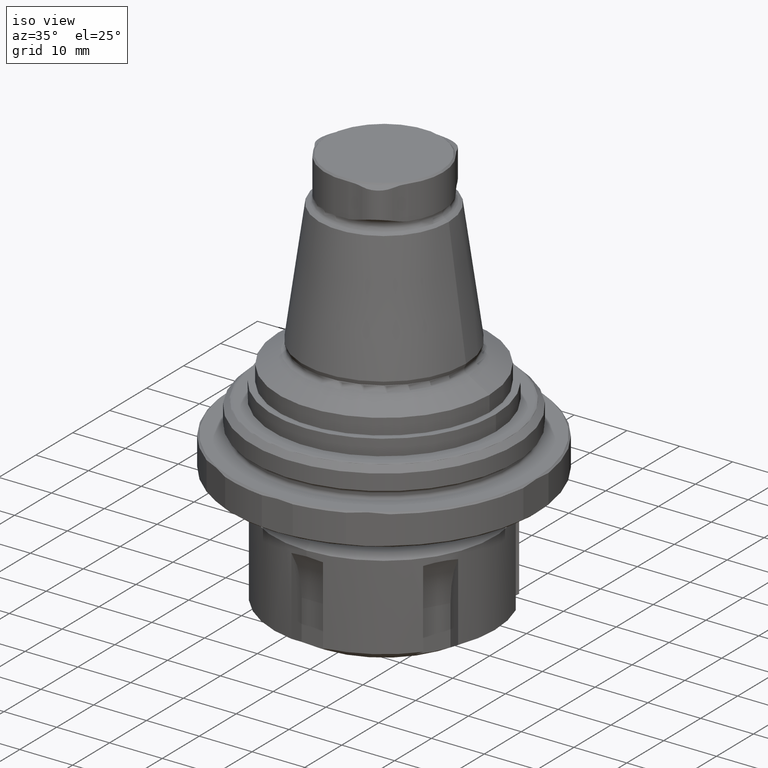
[diagram: clean part render]
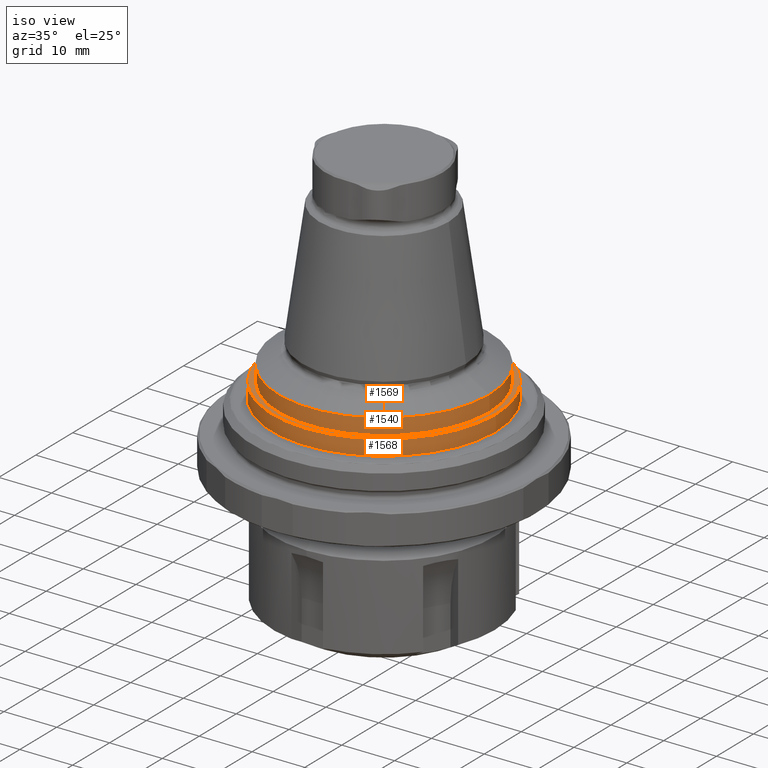
[diagram: same view with one multi-face feature highlighted, each face labeled with its STEP entity id]
A machine part, iso view. The highlighted faces form ONE feature: a stepped (counterbored) hole: 2 coaxial cylindrical walls of radii 20 -> 21.2 mm joined by 1 annular planar shoulder face(s). The faces share edges in the B-rep.
Their STEP definitions:
[1] entity #1568 (Cylinder):
#281=CYLINDRICAL_SURFACE('',#1766,21.2);
#698=ORIENTED_EDGE('',*,*,#923,.T.);
#699=ORIENTED_EDGE('',*,*,#873,.T.);
#873=EDGE_CURVE('',#1040,#1040,#1143,.T.);
#923=EDGE_CURVE('',#1074,#1074,#1161,.T.);
#1040=VERTEX_POINT('',#2744);
#1074=VERTEX_POINT('',#2896);
#1143=CIRCLE('',#1729,21.2);
#1161=CIRCLE('',#1767,21.2);
#1291=EDGE_LOOP('',(#698));
#1292=EDGE_LOOP('',(#699));
#1431=FACE_BOUND('',#1291,.T.);
#1432=FACE_BOUND('',#1292,.T.);
#1568=ADVANCED_FACE('',(#1431,#1432),#281,.T.);
#1729=AXIS2_PLACEMENT_3D('',#2743,#2101,#2102);
#1766=AXIS2_PLACEMENT_3D('',#2894,#2191,#2192);
#1767=AXIS2_PLACEMENT_3D('',#2895,#2193,#2194);
#2101=DIRECTION('',(-2.02660218267321E-18,5.86898373205991E-17,1.));
#2102=DIRECTION('',(1.,-8.32667268468867E-17,2.02660218267322E-18));
#2191=DIRECTION('',(-2.02660218267322E-18,-2.54048037051973E-18,1.));
#2192=DIRECTION('',(1.,-8.32667268468867E-17,2.02660218267322E-18));
#2193=DIRECTION('',(2.02660218267322E-18,6.37707980616386E-17,-1.));
#2194=DIRECTION('',(-1.,8.32667268468867E-17,-2.02660218267322E-18));
#2743=CARTESIAN_POINT('',(-5.02354507334284E-15,7.62144111155949E-18,5.));
#2744=CARTESIAN_POINT('',(21.2,-1.75763316804244E-15,5.));
#2894=CARTESIAN_POINT('',(-5.02658497661685E-15,3.8107205557799E-18,6.5));
#2895=CARTESIAN_POINT('',(-5.02962487989086E-15,3.06227182674416E-31,8.));
#2896=CARTESIAN_POINT('',(-21.2,1.765254609154E-15,8.));
[2] entity #1540 (Cylinder):
#270=CYLINDRICAL_SURFACE('',#1711,20.);
#580=ORIENTED_EDGE('',*,*,#863,.T.);
#581=ORIENTED_EDGE('',*,*,#864,.F.);
#863=EDGE_CURVE('',#1030,#1030,#1133,.T.);
#864=EDGE_CURVE('',#1031,#1031,#1134,.T.);
#1030=VERTEX_POINT('',#2715);
#1031=VERTEX_POINT('',#2718);
#1133=CIRCLE('',#1710,20.);
#1134=CIRCLE('',#1712,20.);
#1251=EDGE_LOOP('',(#580));
#1252=EDGE_LOOP('',(#581));
#1391=FACE_BOUND('',#1251,.T.);
#1392=FACE_BOUND('',#1252,.T.);
#1540=ADVANCED_FACE('',(#1391,#1392),#270,.T.);
#1710=AXIS2_PLACEMENT_3D('',#2714,#2063,#2064);
#1711=AXIS2_PLACEMENT_3D('',#2716,#2065,#2066);
#1712=AXIS2_PLACEMENT_3D('',#2717,#2067,#2068);
#2063=DIRECTION('',(-1.27319154200133E-16,7.79579225983867E-33,-1.));
#2064=DIRECTION('',(1.,-6.12303176911189E-17,-1.27319154200133E-16));
#2065=DIRECTION('',(-1.27319154200133E-16,7.79579225983867E-33,-1.));
#2066=DIRECTION('',(1.,-6.12303176911189E-17,-1.27319154200133E-16));
#2067=DIRECTION('',(-1.27319154200133E-16,7.79579225983867E-33,-1.));
#2068=DIRECTION('',(1.,-6.12303176911189E-17,-1.27319154200133E-16));
#2714=CARTESIAN_POINT('',(-4.64714912830484E-15,2.84546417484111E-31,11.0040707856479));
#2715=CARTESIAN_POINT('',(20.,-1.22460635382238E-15,11.0040707856479));
#2716=CARTESIAN_POINT('',(0.,0.,47.5040707856479));
#2717=CARTESIAN_POINT('',(-5.02962487989086E-15,3.07965529262873E-31,8.));
#2718=CARTESIAN_POINT('',(20.,-1.22460635382238E-15,8.));
[3] entity #1569 (Plane):
#239=PLANE('',#1768);
#700=ORIENTED_EDGE('',*,*,#923,.F.);
#701=ORIENTED_EDGE('',*,*,#864,.T.);
#864=EDGE_CURVE('',#1031,#1031,#1134,.T.);
#923=EDGE_CURVE('',#1074,#1074,#1161,.T.);
#1031=VERTEX_POINT('',#2718);
#1074=VERTEX_POINT('',#2896);
#1134=CIRCLE('',#1712,20.);
#1161=CIRCLE('',#1767,21.2);
#1293=EDGE_LOOP('',(#700));
#1294=EDGE_LOOP('',(#701));
#1433=FACE_BOUND('',#1293,.T.);
#1434=FACE_BOUND('',#1294,.T.);
#1569=ADVANCED_FACE('',(#1433,#1434),#239,.T.);
#1712=AXIS2_PLACEMENT_3D('',#2717,#2067,#2068);
#1767=AXIS2_PLACEMENT_3D('',#2895,#2193,#2194);
#1768=AXIS2_PLACEMENT_3D('',#2897,#2195,#2196);
#2067=DIRECTION('',(-1.27319154200133E-16,7.79579225983867E-33,-1.));
#2068=DIRECTION('',(1.,-6.12303176911189E-17,-1.27319154200133E-16));
#2193=DIRECTION('',(2.02660218267322E-18,6.37707980616386E-17,-1.));
#2194=DIRECTION('',(-1.,8.32667268468867E-17,-2.02660218267322E-18));
#2195=DIRECTION('',(-2.02660218267322E-18,-6.37707980616386E-17,1.));
#2196=DIRECTION('',(8.32667268468867E-17,1.,6.37707980616386E-17));
#2717=CARTESIAN_POINT('',(-5.02962487989086E-15,3.07965529262873E-31,8.));
#2718=CARTESIAN_POINT('',(20.,-1.22460635382238E-15,8.));
#2895=CARTESIAN_POINT('',(-5.02962487989086E-15,3.06227182674416E-31,8.));
#2896=CARTESIAN_POINT('',(-21.2,1.765254609154E-15,8.));
#2897=CARTESIAN_POINT('',(-5.02962487989086E-15,3.06227182674416E-31,8.));